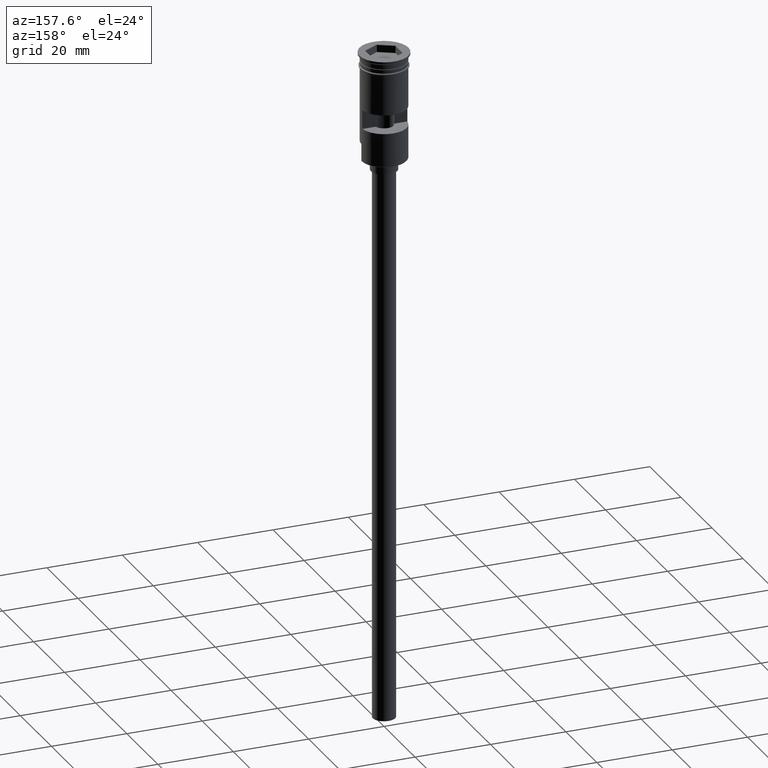
[diagram: clean part render]
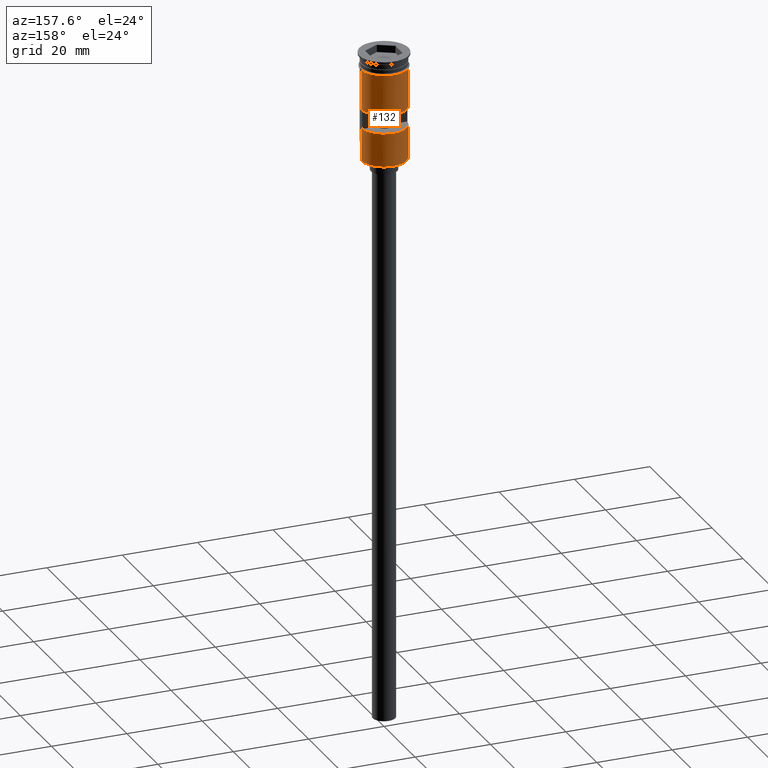
[diagram: same view with one face highlighted and labeled with its STEP entity id]
A machine part, auxiliary view. The second image highlights one B-rep face of the part: STEP entity #132.
In plain terms, the highlighted cylindrical surface (edge-blend (fillet) strip) has radius 6 mm, axis along (-0, -0, 1).
Its self-contained STEP definition (entity closure, byte-faithful):
#5 = LINE ( 'NONE', #1001, #637 ) ;
#9 = EDGE_CURVE ( 'NONE', #820, #341, #754, .T. ) ;
#23 = DIRECTION ( 'NONE',  ( 0.000000000000000000, 0.000000000000000000, 1.000000000000000000 ) ) ;
#32 = EDGE_CURVE ( 'NONE', #328, #975, #1440, .T. ) ;
#46 = DIRECTION ( 'NONE',  ( -0.000000000000000000, -0.000000000000000000, 1.000000000000000000 ) ) ;
#62 = CARTESIAN_POINT ( 'NONE',  ( -5.999999999999994671, 0.000000000000000000, -23.79999999999997939 ) ) ;
#66 = CARTESIAN_POINT ( 'NONE',  ( -6.000000000000000000, 7.347880794884119736E-16, -3.799999999999998490 ) ) ;
#89 = EDGE_CURVE ( 'NONE', #1379, #581, #733, .T. ) ;
#109 = CARTESIAN_POINT ( 'NONE',  ( -5.999999999999997335, 7.347880794884116778E-16, 0.000000000000000000 ) ) ;
#132 = ADVANCED_FACE ( 'NONE', ( #1288, #673 ), #1043, .T. ) ;
#136 = AXIS2_PLACEMENT_3D ( 'NONE', #663, #46, #526 ) ;
#141 = EDGE_CURVE ( 'NONE', #677, #1443, #236, .T. ) ;
#192 = ORIENTED_EDGE ( 'NONE', *, *, #89, .F. ) ;
#223 = DIRECTION ( 'NONE',  ( -0.000000000000000000, -3.212450881438533227E-16, -1.000000000000000000 ) ) ;
#236 = CIRCLE ( 'NONE', #567, 5.999999999999997335 ) ;
#280 = ORIENTED_EDGE ( 'NONE', *, *, #1079, .T. ) ;
#296 = VERTEX_POINT ( 'NONE', #1413 ) ;
#328 = VERTEX_POINT ( 'NONE', #62 ) ;
#341 = VERTEX_POINT ( 'NONE', #1438 ) ;
#355 = LINE ( 'NONE', #476, #1210 ) ;
#377 = ORIENTED_EDGE ( 'NONE', *, *, #890, .T. ) ;
#417 = AXIS2_PLACEMENT_3D ( 'NONE', #1301, #1027, #1161 ) ;
#448 = ORIENTED_EDGE ( 'NONE', *, *, #995, .F. ) ;
#476 = CARTESIAN_POINT ( 'NONE',  ( -5.969924622639716461, 0.5999999999999997558, 0.000000000000000000 ) ) ;
#501 = LINE ( 'NONE', #1002, #906 ) ;
#526 = DIRECTION ( 'NONE',  ( 1.000000000000000000, 0.000000000000000000, 0.000000000000000000 ) ) ;
#567 = AXIS2_PLACEMENT_3D ( 'NONE', #632, #23, #1141 ) ;
#581 = VERTEX_POINT ( 'NONE', #1293 ) ;
#598 = CIRCLE ( 'NONE', #815, 5.999999999999997335 ) ;
#632 = CARTESIAN_POINT ( 'NONE',  ( 0.000000000000000000, 0.000000000000000000, -19.50000000000000355 ) ) ;
#637 = VECTOR ( 'NONE', #1371, 1000.000000000000000 ) ;
#663 = CARTESIAN_POINT ( 'NONE',  ( 0.000000000000000000, 0.000000000000000000, 0.000000000000000000 ) ) ;
#668 = VECTOR ( 'NONE', #711, 1000.000000000000000 ) ;
#673 = FACE_OUTER_BOUND ( 'NONE', #1365, .T. ) ;
#677 = VERTEX_POINT ( 'NONE', #1367 ) ;
#711 = DIRECTION ( 'NONE',  ( -0.000000000000000000, -0.000000000000000000, 1.000000000000000000 ) ) ;
#724 = VECTOR ( 'NONE', #1213, 1000.000000000000000 ) ;
#733 = LINE ( 'NONE', #1111, #668 ) ;
#754 = CIRCLE ( 'NONE', #957, 5.999999999999997335 ) ;
#815 = AXIS2_PLACEMENT_3D ( 'NONE', #922, #1062, #1493 ) ;
#820 = VERTEX_POINT ( 'NONE', #1356 ) ;
#868 = CIRCLE ( 'NONE', #417, 6.000000000000000000 ) ;
#890 = EDGE_CURVE ( 'NONE', #296, #1465, #598, .T. ) ;
#905 = CARTESIAN_POINT ( 'NONE',  ( 5.999999999999994671, 7.347880794884112834E-16, -28.50000000000000000 ) ) ;
#906 = VECTOR ( 'NONE', #1403, 1000.000000000000000 ) ;
#915 = EDGE_CURVE ( 'NONE', #341, #677, #5, .T. ) ;
#922 = CARTESIAN_POINT ( 'NONE',  ( 0.000000000000000000, 0.000000000000000000, -28.29999999999999716 ) ) ;
#957 = AXIS2_PLACEMENT_3D ( 'NONE', #1568, #223, #1576 ) ;
#975 = VERTEX_POINT ( 'NONE', #66 ) ;
#985 = DIRECTION ( 'NONE',  ( -0.000000000000000000, -0.000000000000000000, 1.000000000000000000 ) ) ;
#995 = EDGE_CURVE ( 'NONE', #296, #1379, #1548, .T. ) ;
#1001 = CARTESIAN_POINT ( 'NONE',  ( 5.969924622639716461, 0.5999999999999997558, 0.000000000000000000 ) ) ;
#1002 = CARTESIAN_POINT ( 'NONE',  ( -5.999999999999994671, 0.000000000000000000, -28.50000000000000000 ) ) ;
#1007 = CARTESIAN_POINT ( 'NONE',  ( -5.969924622639716461, 0.5999999999999997558, -19.50000000000000355 ) ) ;
#1027 = DIRECTION ( 'NONE',  ( -0.000000000000000000, -0.000000000000000000, 1.000000000000000000 ) ) ;
#1043 = CYLINDRICAL_SURFACE ( 'NONE', #136, 5.999999999999997335 ) ;
#1062 = DIRECTION ( 'NONE',  ( 0.000000000000000000, 0.000000000000000000, 1.000000000000000000 ) ) ;
#1079 = EDGE_CURVE ( 'NONE', #1465, #328, #501, .T. ) ;
#1085 = ORIENTED_EDGE ( 'NONE', *, *, #9, .F. ) ;
#1090 = ORIENTED_EDGE ( 'NONE', *, *, #32, .T. ) ;
#1111 = CARTESIAN_POINT ( 'NONE',  ( 5.999999999999997335, 0.000000000000000000, 0.000000000000000000 ) ) ;
#1141 = DIRECTION ( 'NONE',  ( -1.000000000000000000, 0.000000000000000000, 0.000000000000000000 ) ) ;
#1161 = DIRECTION ( 'NONE',  ( 1.000000000000000000, 0.000000000000000000, 0.000000000000000000 ) ) ;
#1210 = VECTOR ( 'NONE', #985, 1000.000000000000000 ) ;
#1213 = DIRECTION ( 'NONE',  ( -0.000000000000000000, -0.000000000000000000, 1.000000000000000000 ) ) ;
#1220 = ORIENTED_EDGE ( 'NONE', *, *, #915, .F. ) ;
#1253 = VECTOR ( 'NONE', #1399, 1000.000000000000000 ) ;
#1257 = CARTESIAN_POINT ( 'NONE',  ( -5.999999999999994671, 0.000000000000000000, -28.29999999999999716 ) ) ;
#1288 = FACE_BOUND ( 'NONE', #1557, .T. ) ;
#1293 = CARTESIAN_POINT ( 'NONE',  ( 6.000000000000000000, 0.000000000000000000, -3.799999999999998490 ) ) ;
#1301 = CARTESIAN_POINT ( 'NONE',  ( 0.000000000000000000, 0.000000000000000000, -3.799999999999998490 ) ) ;
#1308 = EDGE_CURVE ( 'NONE', #1443, #820, #355, .T. ) ;
#1356 = CARTESIAN_POINT ( 'NONE',  ( -5.969924622639716461, 0.5999999999999999778, -14.49999999999999822 ) ) ;
#1364 = CARTESIAN_POINT ( 'NONE',  ( 5.999999999999997335, 7.347880794884115792E-16, -23.79999999999997939 ) ) ;
#1365 = EDGE_LOOP ( 'NONE', ( #280, #1090, #1370, #192, #448, #377 ) ) ;
#1367 = CARTESIAN_POINT ( 'NONE',  ( 5.969924622639712908, 0.5999999999999999778, -19.50000000000000355 ) ) ;
#1370 = ORIENTED_EDGE ( 'NONE', *, *, #1564, .F. ) ;
#1371 = DIRECTION ( 'NONE',  ( 0.000000000000000000, 0.000000000000000000, -1.000000000000000000 ) ) ;
#1379 = VERTEX_POINT ( 'NONE', #1364 ) ;
#1399 = DIRECTION ( 'NONE',  ( -0.000000000000000000, -0.000000000000000000, 1.000000000000000000 ) ) ;
#1403 = DIRECTION ( 'NONE',  ( -0.000000000000000000, -0.000000000000000000, 1.000000000000000000 ) ) ;
#1413 = CARTESIAN_POINT ( 'NONE',  ( 5.999999999999994671, 7.347880794884112834E-16, -28.29999999999999716 ) ) ;
#1438 = CARTESIAN_POINT ( 'NONE',  ( 5.969924622639712908, 0.5999999999999999778, -14.49999999999999822 ) ) ;
#1440 = LINE ( 'NONE', #109, #724 ) ;
#1443 = VERTEX_POINT ( 'NONE', #1007 ) ;
#1465 = VERTEX_POINT ( 'NONE', #1257 ) ;
#1493 = DIRECTION ( 'NONE',  ( -1.000000000000000000, 0.000000000000000000, 0.000000000000000000 ) ) ;
#1548 = LINE ( 'NONE', #905, #1253 ) ;
#1557 = EDGE_LOOP ( 'NONE', ( #1220, #1085, #1602, #1569 ) ) ;
#1564 = EDGE_CURVE ( 'NONE', #581, #975, #868, .T. ) ;
#1568 = CARTESIAN_POINT ( 'NONE',  ( 0.000000000000000000, 0.000000000000000000, -14.49999999999999822 ) ) ;
#1569 = ORIENTED_EDGE ( 'NONE', *, *, #141, .F. ) ;
#1576 = DIRECTION ( 'NONE',  ( 0.000000000000000000, -1.000000000000000000, 2.891205793294679805E-16 ) ) ;
#1602 = ORIENTED_EDGE ( 'NONE', *, *, #1308, .F. ) ;